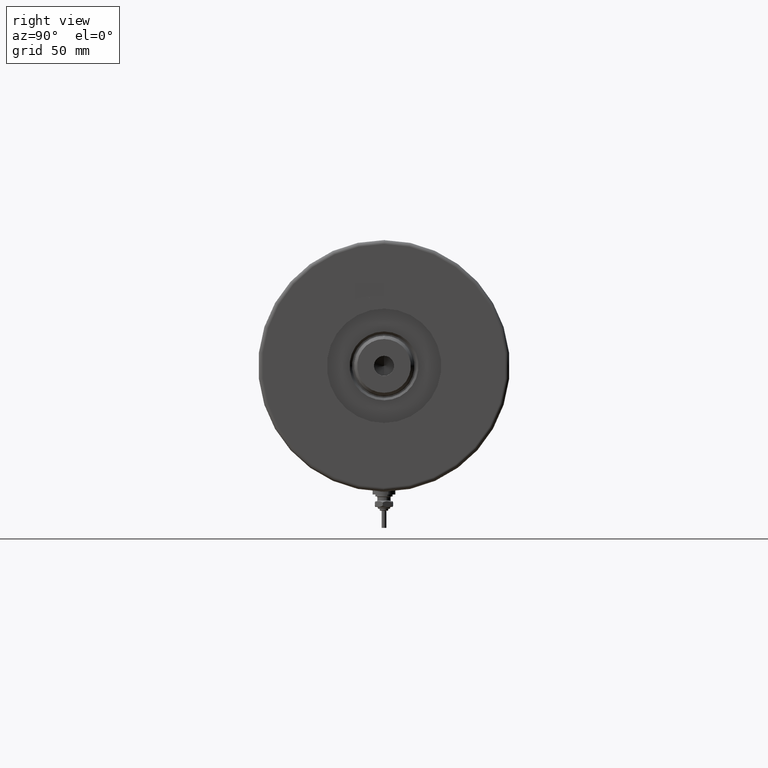
[diagram: clean part render]
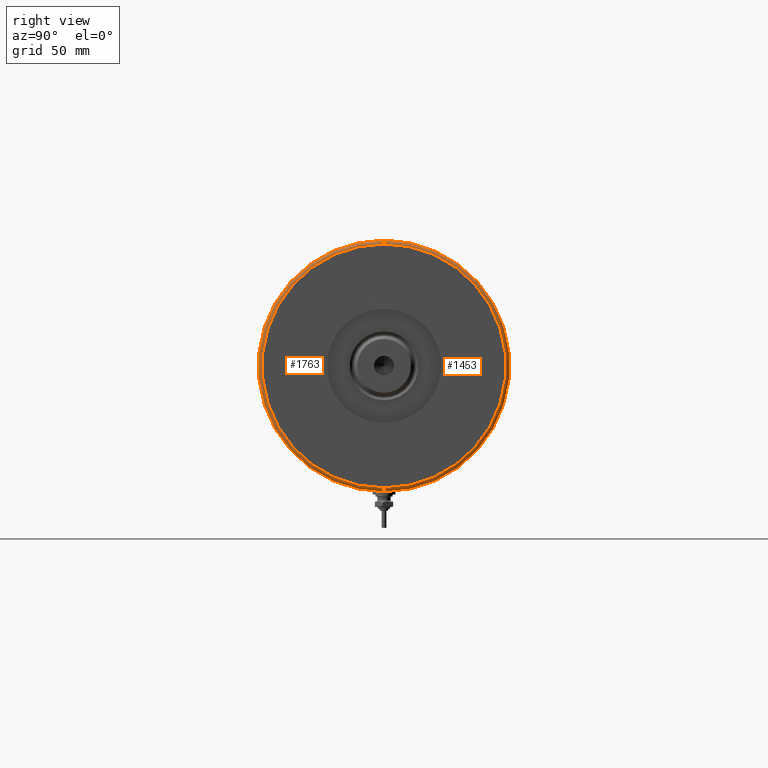
[diagram: same view with one multi-face feature highlighted, each face labeled with its STEP entity id]
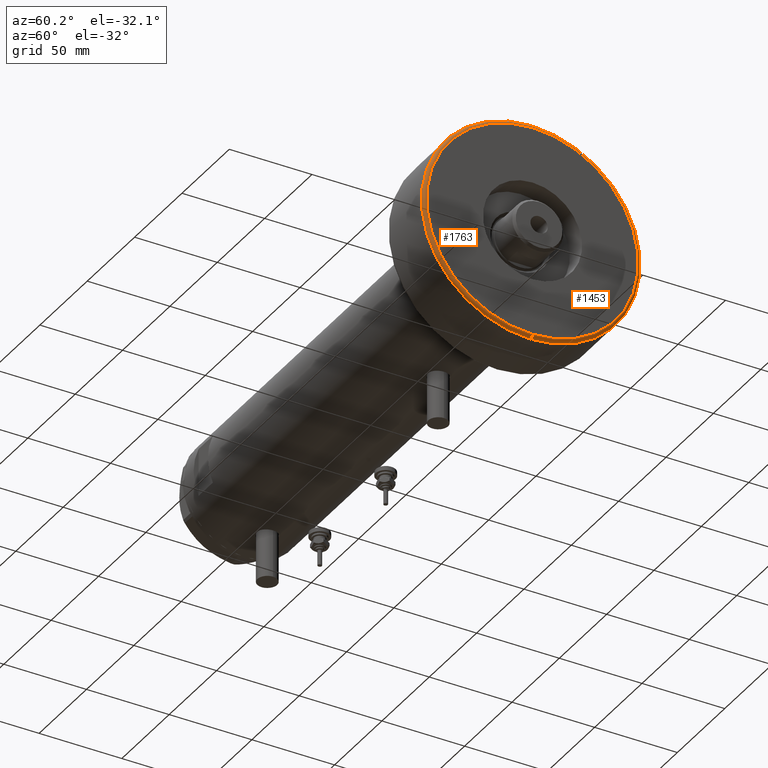
[diagram: same view with one multi-face feature highlighted, each face labeled with its STEP entity id]
A machine part, right view. The highlighted faces form ONE feature: a constant-radius fillet chain: 2 tangent blend faces with common blend radius 2 mm. The faces share edges in the B-rep.
A second angle (auxiliary view) of the same feature is appended — it is thin or edge-on in the first view.
Their STEP definitions:
[1] entity #1453 (Torus):
#27 = AXIS2_PLACEMENT_3D ( 'NONE', #4458, #6033, #2023 ) ;
#87 = CARTESIAN_POINT ( 'NONE',  ( -66.00000000000000000, 0.000000000000000000, 36.00000000000000000 ) ) ;
#103 = ORIENTED_EDGE ( 'NONE', *, *, #1413, .T. ) ;
#739 = AXIS2_PLACEMENT_3D ( 'NONE', #802, #5710, #6218 ) ;
#802 = CARTESIAN_POINT ( 'NONE',  ( 0.000000000000000000, 0.000000000000000000, 38.00000000000000000 ) ) ;
#850 = CIRCLE ( 'NONE', #4744, 66.00000000000000000 ) ;
#1115 = CARTESIAN_POINT ( 'NONE',  ( 64.00000000000000000, 0.000000000000000000, 38.00000000000000000 ) ) ;
#1154 = EDGE_CURVE ( 'NONE', #2444, #4994, #850, .T. ) ;
#1413 = EDGE_CURVE ( 'NONE', #2444, #2031, #2060, .T. ) ;
#1453 = ADVANCED_FACE ( 'NONE', ( #1530 ), #3602, .T. ) ;
#1469 = DIRECTION ( 'NONE',  ( 1.000000000000000000, 0.000000000000000000, 0.000000000000000000 ) ) ;
#1530 = FACE_OUTER_BOUND ( 'NONE', #3106, .T. ) ;
#1619 = EDGE_CURVE ( 'NONE', #4994, #2927, #4721, .T. ) ;
#2023 = DIRECTION ( 'NONE',  ( 1.000000000000000000, 0.000000000000000000, 0.000000000000000000 ) ) ;
#2031 = VERTEX_POINT ( 'NONE', #2662 ) ;
#2060 = CIRCLE ( 'NONE', #3381, 2.000000000000001776 ) ;
#2086 = EDGE_CURVE ( 'NONE', #2927, #2031, #2168, .T. ) ;
#2168 = CIRCLE ( 'NONE', #739, 64.00000000000000000 ) ;
#2444 = VERTEX_POINT ( 'NONE', #87 ) ;
#2615 = CARTESIAN_POINT ( 'NONE',  ( 64.00000000000000000, 0.000000000000000000, 36.00000000000000000 ) ) ;
#2662 = CARTESIAN_POINT ( 'NONE',  ( -64.00000000000000000, 7.960204194457797252E-15, 38.00000000000000000 ) ) ;
#2669 = AXIS2_PLACEMENT_3D ( 'NONE', #2615, #4510, #3611 ) ;
#2927 = VERTEX_POINT ( 'NONE', #1115 ) ;
#3106 = EDGE_LOOP ( 'NONE', ( #3447, #103, #3164, #4643 ) ) ;
#3164 = ORIENTED_EDGE ( 'NONE', *, *, #2086, .F. ) ;
#3381 = AXIS2_PLACEMENT_3D ( 'NONE', #3386, #5343, #5802 ) ;
#3386 = CARTESIAN_POINT ( 'NONE',  ( -64.00000000000000000, 7.837739514543060526E-15, 36.00000000000000000 ) ) ;
#3447 = ORIENTED_EDGE ( 'NONE', *, *, #1154, .F. ) ;
#3602 = TOROIDAL_SURFACE ( 'NONE', #27, 64.00000000000000000, 2.000000000000000000 ) ;
#3611 = DIRECTION ( 'NONE',  ( 0.000000000000000000, 0.000000000000000000, -1.000000000000000000 ) ) ;
#4212 = CARTESIAN_POINT ( 'NONE',  ( 66.00000000000000000, 8.082668874372532400E-15, 36.00000000000000000 ) ) ;
#4303 = CARTESIAN_POINT ( 'NONE',  ( 0.000000000000000000, 0.000000000000000000, 36.00000000000000000 ) ) ;
#4373 = DIRECTION ( 'NONE',  ( -0.000000000000000000, -0.000000000000000000, -1.000000000000000000 ) ) ;
#4458 = CARTESIAN_POINT ( 'NONE',  ( 0.000000000000000000, 0.000000000000000000, 36.00000000000000000 ) ) ;
#4510 = DIRECTION ( 'NONE',  ( 0.000000000000000000, -1.000000000000000000, 0.000000000000000000 ) ) ;
#4643 = ORIENTED_EDGE ( 'NONE', *, *, #1619, .F. ) ;
#4721 = CIRCLE ( 'NONE', #2669, 2.000000000000001776 ) ;
#4744 = AXIS2_PLACEMENT_3D ( 'NONE', #4303, #4373, #1469 ) ;
#4994 = VERTEX_POINT ( 'NONE', #4212 ) ;
#5343 = DIRECTION ( 'NONE',  ( 1.224646799147353207E-16, 1.000000000000000000, -0.000000000000000000 ) ) ;
#5710 = DIRECTION ( 'NONE',  ( 0.000000000000000000, 0.000000000000000000, 1.000000000000000000 ) ) ;
#5802 = DIRECTION ( 'NONE',  ( -1.000000000000000000, 1.224646799147349509E-16, 0.000000000000000000 ) ) ;
#6033 = DIRECTION ( 'NONE',  ( 0.000000000000000000, 0.000000000000000000, 1.000000000000000000 ) ) ;
#6218 = DIRECTION ( 'NONE',  ( 1.000000000000000000, 0.000000000000000000, 0.000000000000000000 ) ) ;
[2] entity #1763 (Torus):
#87 = CARTESIAN_POINT ( 'NONE',  ( -66.00000000000000000, 0.000000000000000000, 36.00000000000000000 ) ) ;
#140 = ORIENTED_EDGE ( 'NONE', *, *, #1413, .F. ) ;
#249 = CARTESIAN_POINT ( 'NONE',  ( 0.000000000000000000, 0.000000000000000000, 36.00000000000000000 ) ) ;
#330 = EDGE_CURVE ( 'NONE', #2031, #2927, #4109, .T. ) ;
#756 = EDGE_CURVE ( 'NONE', #4994, #2444, #5855, .T. ) ;
#1069 = CARTESIAN_POINT ( 'NONE',  ( 0.000000000000000000, 0.000000000000000000, 38.00000000000000000 ) ) ;
#1115 = CARTESIAN_POINT ( 'NONE',  ( 64.00000000000000000, 0.000000000000000000, 38.00000000000000000 ) ) ;
#1413 = EDGE_CURVE ( 'NONE', #2444, #2031, #2060, .T. ) ;
#1552 = AXIS2_PLACEMENT_3D ( 'NONE', #4284, #2698, #5717 ) ;
#1619 = EDGE_CURVE ( 'NONE', #4994, #2927, #4721, .T. ) ;
#1763 = ADVANCED_FACE ( 'NONE', ( #2335 ), #2261, .T. ) ;
#2031 = VERTEX_POINT ( 'NONE', #2662 ) ;
#2060 = CIRCLE ( 'NONE', #3381, 2.000000000000001776 ) ;
#2261 = TOROIDAL_SURFACE ( 'NONE', #1552, 64.00000000000000000, 2.000000000000000000 ) ;
#2276 = DIRECTION ( 'NONE',  ( 1.000000000000000000, 0.000000000000000000, 0.000000000000000000 ) ) ;
#2335 = FACE_OUTER_BOUND ( 'NONE', #2814, .T. ) ;
#2348 = AXIS2_PLACEMENT_3D ( 'NONE', #1069, #4318, #2475 ) ;
#2444 = VERTEX_POINT ( 'NONE', #87 ) ;
#2475 = DIRECTION ( 'NONE',  ( 1.000000000000000000, 0.000000000000000000, 0.000000000000000000 ) ) ;
#2615 = CARTESIAN_POINT ( 'NONE',  ( 64.00000000000000000, 0.000000000000000000, 36.00000000000000000 ) ) ;
#2662 = CARTESIAN_POINT ( 'NONE',  ( -64.00000000000000000, 7.960204194457797252E-15, 38.00000000000000000 ) ) ;
#2669 = AXIS2_PLACEMENT_3D ( 'NONE', #2615, #4510, #3611 ) ;
#2698 = DIRECTION ( 'NONE',  ( 0.000000000000000000, 0.000000000000000000, 1.000000000000000000 ) ) ;
#2732 = ORIENTED_EDGE ( 'NONE', *, *, #756, .F. ) ;
#2814 = EDGE_LOOP ( 'NONE', ( #140, #2732, #3225, #3387 ) ) ;
#2927 = VERTEX_POINT ( 'NONE', #1115 ) ;
#3225 = ORIENTED_EDGE ( 'NONE', *, *, #1619, .T. ) ;
#3381 = AXIS2_PLACEMENT_3D ( 'NONE', #3386, #5343, #5802 ) ;
#3386 = CARTESIAN_POINT ( 'NONE',  ( -64.00000000000000000, 7.837739514543060526E-15, 36.00000000000000000 ) ) ;
#3387 = ORIENTED_EDGE ( 'NONE', *, *, #330, .F. ) ;
#3611 = DIRECTION ( 'NONE',  ( 0.000000000000000000, 0.000000000000000000, -1.000000000000000000 ) ) ;
#4109 = CIRCLE ( 'NONE', #2348, 64.00000000000000000 ) ;
#4183 = DIRECTION ( 'NONE',  ( -0.000000000000000000, -0.000000000000000000, -1.000000000000000000 ) ) ;
#4212 = CARTESIAN_POINT ( 'NONE',  ( 66.00000000000000000, 8.082668874372532400E-15, 36.00000000000000000 ) ) ;
#4284 = CARTESIAN_POINT ( 'NONE',  ( 0.000000000000000000, 0.000000000000000000, 36.00000000000000000 ) ) ;
#4318 = DIRECTION ( 'NONE',  ( 0.000000000000000000, 0.000000000000000000, 1.000000000000000000 ) ) ;
#4510 = DIRECTION ( 'NONE',  ( 0.000000000000000000, -1.000000000000000000, 0.000000000000000000 ) ) ;
#4721 = CIRCLE ( 'NONE', #2669, 2.000000000000001776 ) ;
#4994 = VERTEX_POINT ( 'NONE', #4212 ) ;
#5343 = DIRECTION ( 'NONE',  ( 1.224646799147353207E-16, 1.000000000000000000, -0.000000000000000000 ) ) ;
#5717 = DIRECTION ( 'NONE',  ( 1.000000000000000000, 0.000000000000000000, 0.000000000000000000 ) ) ;
#5802 = DIRECTION ( 'NONE',  ( -1.000000000000000000, 1.224646799147349509E-16, 0.000000000000000000 ) ) ;
#5855 = CIRCLE ( 'NONE', #5964, 66.00000000000000000 ) ;
#5964 = AXIS2_PLACEMENT_3D ( 'NONE', #249, #4183, #2276 ) ;